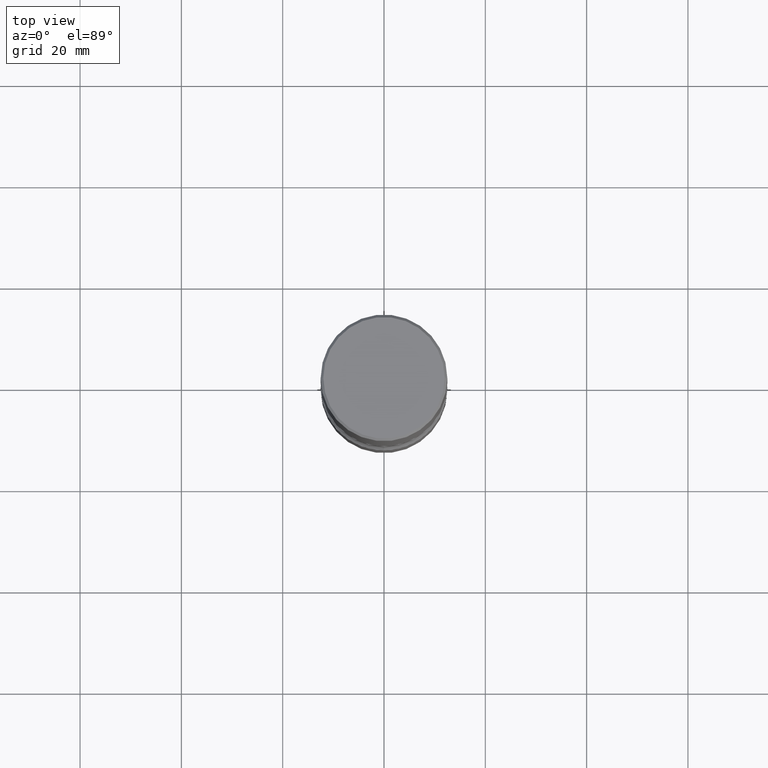
[diagram: clean part render]
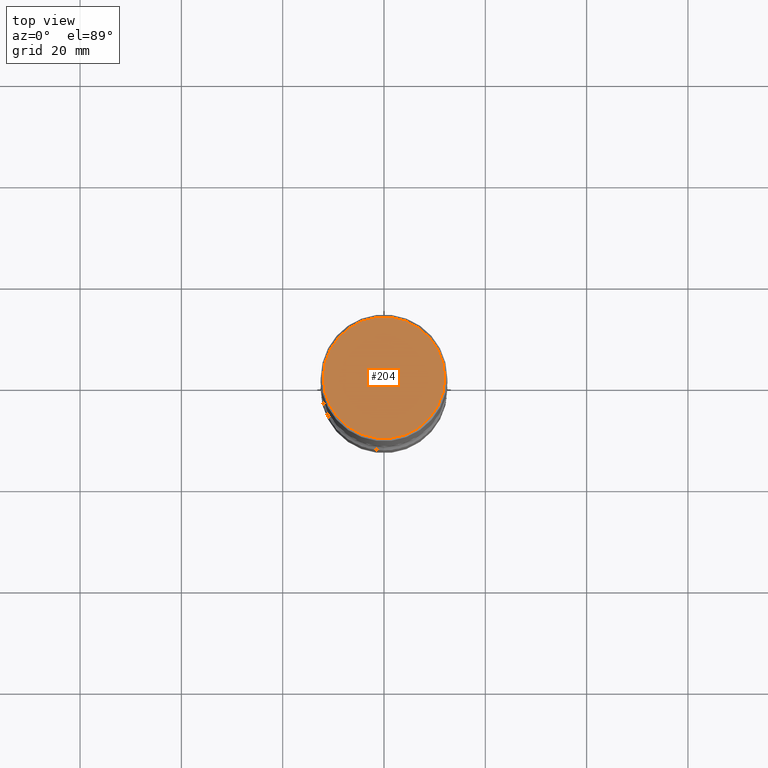
[diagram: same view with one face highlighted and labeled with its STEP entity id]
A machine part, top view. The second image highlights one B-rep face of the part: STEP entity #204.
In plain terms, the highlighted planar face has unit normal (0, -0, -1).
Its self-contained STEP definition (entity closure, byte-faithful):
#7 = DIRECTION ( 'NONE',  ( 2.438088387897960049E-29, -3.491481338843145188E-15, -1.000000000000000000 ) ) ;
#11 = CARTESIAN_POINT ( 'NONE',  ( -0.4721500000000000696, 3.331920641658002013E-15, 1.280553747027805488E-17 ) ) ;
#37 = AXIS2_PLACEMENT_3D ( 'NONE', #524, #7, #165 ) ;
#39 = VERTEX_POINT ( 'NONE', #156 ) ;
#48 = CIRCLE ( 'NONE', #392, 0.4721500000000000696 ) ;
#156 = CARTESIAN_POINT ( 'NONE',  ( 0.4721500000000000696, -3.342703923013975763E-15, 1.280553747032445131E-17 ) ) ;
#163 = ORIENTED_EDGE ( 'NONE', *, *, #200, .T. ) ;
#165 = DIRECTION ( 'NONE',  ( -1.000000000000000000, 6.982962677686265922E-15, -4.876176775795935793E-29 ) ) ;
#199 = EDGE_LOOP ( 'NONE', ( #473, #163 ) ) ;
#200 = EDGE_CURVE ( 'NONE', #39, #508, #285, .T. ) ;
#203 = CARTESIAN_POINT ( 'NONE',  ( -3.131554243005659264E-46, 4.471029511141341874E-32, 1.280553747030123384E-17 ) ) ;
#204 = ADVANCED_FACE ( 'NONE', ( #215 ), #205, .F. ) ;
#205 = PLANE ( 'NONE',  #37 ) ;
#215 = FACE_OUTER_BOUND ( 'NONE', #199, .T. ) ;
#235 = AXIS2_PLACEMENT_3D ( 'NONE', #424, #292, #379 ) ;
#285 = CIRCLE ( 'NONE', #235, 0.4721500000000000696 ) ;
#292 = DIRECTION ( 'NONE',  ( -2.445468806185136597E-29, 3.491481338843145583E-15, 1.000000000000000000 ) ) ;
#361 = EDGE_CURVE ( 'NONE', #508, #39, #48, .T. ) ;
#379 = DIRECTION ( 'NONE',  ( 1.000000000000000000, -6.982962677686266711E-15, 4.876006802227158492E-29 ) ) ;
#392 = AXIS2_PLACEMENT_3D ( 'NONE', #203, #511, #422 ) ;
#422 = DIRECTION ( 'NONE',  ( 1.000000000000000000, -6.982962677686266711E-15, 4.876006802227158492E-29 ) ) ;
#424 = CARTESIAN_POINT ( 'NONE',  ( -3.131554243005659264E-46, 4.471029511141341874E-32, 1.280553747030123384E-17 ) ) ;
#473 = ORIENTED_EDGE ( 'NONE', *, *, #361, .T. ) ;
#508 = VERTEX_POINT ( 'NONE', #11 ) ;
#511 = DIRECTION ( 'NONE',  ( -2.445468806185136597E-29, 3.491481338843145583E-15, 1.000000000000000000 ) ) ;
#524 = CARTESIAN_POINT ( 'NONE',  ( 3.297005828269570364E-15, 0.4721500000000000696, -1.642100145399640655E-15 ) ) ;